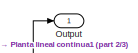
[diagram: root canvas - part 1/3, top right region]
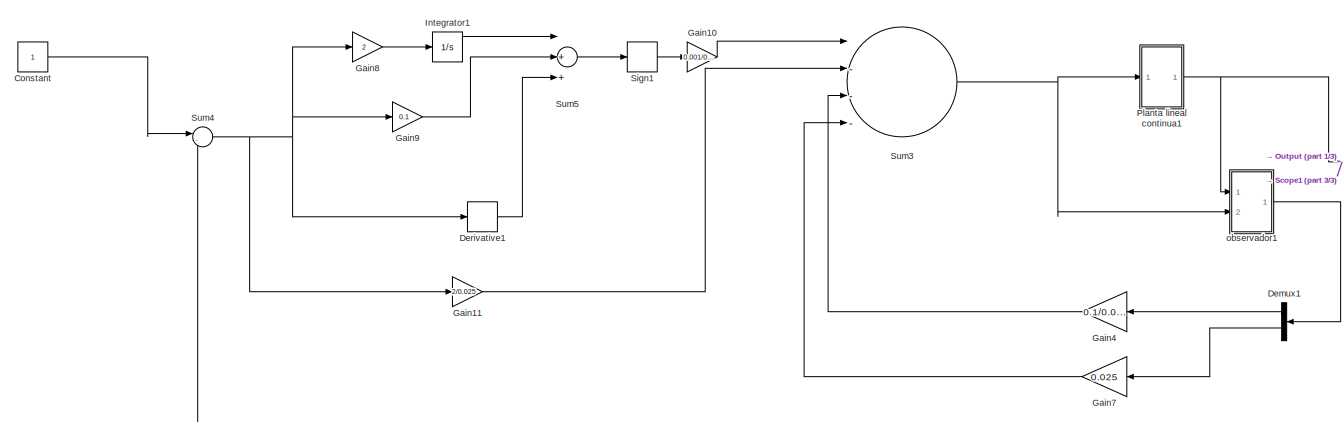
[diagram: root canvas - part 2/3, middle left region]
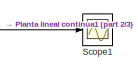
[diagram: root canvas - part 3/3, middle right region]
MODEL slx_2b1a9d527b09
KIND model
CONFIG AbsTol = auto
CONFIG EnableMultiTasking = off
CONFIG FixedStep = auto
CONFIG MaxStep = auto
CONFIG MinStep = auto
CONFIG RelTol = 1e-3
CONFIG SampleTimeConstraint = Unconstrained
CONFIG Solver = VariableStepAuto
CONFIG SolverName = VariableStepAuto
CONFIG StartTime = 0.0
CONFIG StopTime = 50
BLOCK [Constant] Constant
BLOCK [Demux] Demux1
  DisplayOption = bar
  Outputs = 2
  Ports = [1, 2]
BLOCK [Derivative] Derivative1
BLOCK [Gain] Gain10
  Gain = 0.001/0.025
  OutDataTypeStr = Inherit: Inherit via internal rule
  ParamDataTypeStr = Inherit: Inherit via internal rule
  SaturateOnIntegerOverflow = off
BLOCK [Gain] Gain11
  Gain = 2/0.025
  OutDataTypeStr = Inherit: Inherit via internal rule
  ParamDataTypeStr = Inherit: Inherit via internal rule
  SaturateOnIntegerOverflow = off
BLOCK [Gain] Gain4
  Gain = 0.1/0.025-0.25
  OutDataTypeStr = Inherit: Inherit via internal rule
  ParamDataTypeStr = Inherit: Inherit via internal rule
  SaturateOnIntegerOverflow = off
BLOCK [Gain] Gain7
  Gain = 0.025
  OutDataTypeStr = Inherit: Inherit via internal rule
  ParamDataTypeStr = Inherit: Inherit via internal rule
  SaturateOnIntegerOverflow = off
BLOCK [Gain] Gain8
  Gain = 2
  OutDataTypeStr = Inherit: Inherit via internal rule
  ParamDataTypeStr = Inherit: Inherit via internal rule
  SaturateOnIntegerOverflow = off
BLOCK [Gain] Gain9
  Gain = 0.1
  OutDataTypeStr = Inherit: Inherit via internal rule
  ParamDataTypeStr = Inherit: Inherit via internal rule
  SaturateOnIntegerOverflow = off
BLOCK [Integrator] Integrator1
  Ports = [1, 1]
BLOCK [Outport] Output
  IconDisplay = Port number
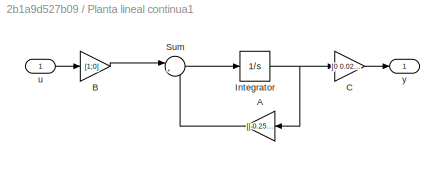
BLOCK [SubSystem] Planta lineal continua1
  Ports = [1, 1]
  RequestExecContextInheritance = off
BLOCK [Gain] Planta lineal continua1/A
  Gain = [[-0.25,-0.025];[1 0]]
  Multiplication = Matrix(K*u) (u vector)
  OutDataTypeStr = Inherit: Inherit via internal rule
  ParamDataTypeStr = Inherit: Inherit via internal rule
  SaturateOnIntegerOverflow = off
BLOCK [Gain] Planta lineal continua1/B
  Gain = [1;0]
  Multiplication = Matrix(K*u) (u vector)
  OutDataTypeStr = Inherit: Inherit via internal rule
  ParamDataTypeStr = Inherit: Inherit via internal rule
  SaturateOnIntegerOverflow = off
BLOCK [Gain] Planta lineal continua1/C
  Gain = [0 0.025]
  Multiplication = Matrix(K*u) (u vector)
  OutDataTypeStr = Inherit: Inherit via internal rule
  ParamDataTypeStr = Inherit: Inherit via internal rule
  SaturateOnIntegerOverflow = off
BLOCK [Integrator] Planta lineal continua1/Integrator
  Ports = [1, 1]
BLOCK [Sum] Planta lineal continua1/Sum
  IconShape = round
  InputSameDT = off
  Inputs = |++
  OutDataTypeStr = Inherit: Inherit via internal rule
  Ports = [2, 1]
  SaturateOnIntegerOverflow = off
BLOCK [Inport] Planta lineal continua1/u
  IconDisplay = Port number
BLOCK [Outport] Planta lineal continua1/y
  IconDisplay = Port number
BLOCK [Scope] Scope1
  Floating = off
  NumInputPorts = 1
  Ports = [1]
  ScopeSpecificationString = Simulink.scopes.TimeScopeBlockCfg('CurrentConfiguration', extmgr.ConfigurationSet(extmgr.Configuration('Core','General UI',true),extmgr.Configuration('Core','Source UI',true),extmgr.Configuration('Sources','WiredSimulink',true,'DataLoggingVariableName','ScopeData1'),extmgr.Configuration('Visuals','Time Domain',true,'SerializedDisplays',{struct('MinYLimReal','-0.12507','MaxYLimReal','1.12562','YLab...<+1762ch>
BLOCK [Signum] Sign1
  ZeroCross = off
BLOCK [Sum] Sum3
  InputSameDT = off
  Inputs = |---+
  OutDataTypeStr = Inherit: Inherit via internal rule
  Ports = [4, 1]
  SaturateOnIntegerOverflow = off
BLOCK [Sum] Sum4
  IconShape = round
  InputSameDT = off
  Inputs = |-+
  OutDataTypeStr = Inherit: Inherit via internal rule
  Ports = [2, 1]
  SaturateOnIntegerOverflow = off
BLOCK [Sum] Sum5
  InputSameDT = off
  Inputs = |+++
  OutDataTypeStr = Inherit: Inherit via internal rule
  Ports = [3, 1]
  SaturateOnIntegerOverflow = off
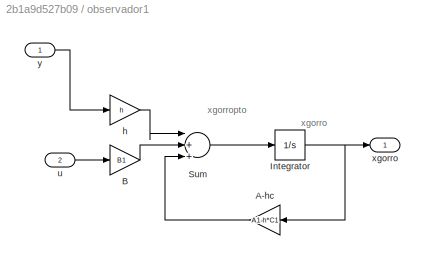
BLOCK [SubSystem] observador1
  Ports = [2, 1]
  RequestExecContextInheritance = off
BLOCK [Gain] observador1/A-hc
  Gain = A1-h*C1
  Multiplication = Matrix(K*u) (u vector)
  OutDataTypeStr = Inherit: Inherit via internal rule
  ParamDataTypeStr = Inherit: Inherit via internal rule
  SaturateOnIntegerOverflow = off
BLOCK [Gain] observador1/B
  Gain = B1
  Multiplication = Matrix(K*u) (u vector)
  OutDataTypeStr = Inherit: Inherit via internal rule
  ParamDataTypeStr = Inherit: Inherit via internal rule
  SaturateOnIntegerOverflow = off
BLOCK [Integrator] observador1/Integrator
  Ports = [1, 1]
BLOCK [Sum] observador1/Sum
  InputSameDT = off
  Inputs = |+++
  OutDataTypeStr = Inherit: Inherit via internal rule
  Ports = [3, 1]
  SaturateOnIntegerOverflow = off
BLOCK [Gain] observador1/h
  Gain = h
  Multiplication = Matrix(K*u) (u vector)
  OutDataTypeStr = Inherit: Inherit via internal rule
  ParamDataTypeStr = Inherit: Inherit via internal rule
  SaturateOnIntegerOverflow = off
BLOCK [Inport] observador1/u
  IconDisplay = Port number
  Port = 2
BLOCK [Outport] observador1/xgorro
  IconDisplay = Port number
BLOCK [Inport] observador1/y
  IconDisplay = Port number
ANNOTATION observador1: xgorro
ANNOTATION observador1: xgorropto
LINE Constant:1 -> Sum4:1
LINE Demux1:1 -> Gain4:1
LINE Demux1:2 -> Gain7:1
LINE Derivative1:1 -> Sum5:3
LINE Gain10:1 -> Sum3:1
LINE Gain11:1 -> Sum3:2
LINE Gain4:1 -> Sum3:3
LINE Gain7:1 -> Sum3:4
LINE Gain8:1 -> Integrator1:1
LINE Gain9:1 -> Sum5:2
LINE Integrator1:1 -> Sum5:1
LINE Planta lineal continua1/A:1 -> Planta lineal continua1/Sum:2
LINE Planta lineal continua1/B:1 -> Planta lineal continua1/Sum:1
LINE Planta lineal continua1/C:1 -> Planta lineal continua1/y:1
NET Planta lineal continua1/Integrator:1 -> Planta lineal continua1/A:1, Planta lineal continua1/C:1
LINE Planta lineal continua1/Sum:1 -> Planta lineal continua1/Integrator:1
LINE Planta lineal continua1/u:1 -> Planta lineal continua1/B:1
NET Planta lineal continua1:1 -> Output:1, Scope1:1, Sum4:2, observador1:1
LINE Sign1:1 -> Gain10:1
NET Sum3:1 -> Planta lineal continua1:1, observador1:2
NET Sum4:1 -> Derivative1:1, Gain11:1, Gain8:1, Gain9:1
LINE Sum5:1 -> Sign1:1
LINE observador1/A-hc:1 -> observador1/Sum:3
LINE observador1/B:1 -> observador1/Sum:2
NET observador1/Integrator:1 -> observador1/A-hc:1, observador1/xgorro:1
LINE observador1/Sum:1 -> observador1/Integrator:1
LINE observador1/h:1 -> observador1/Sum:1
LINE observador1/u:1 -> observador1/B:1
LINE observador1/y:1 -> observador1/h:1
LINE observador1:1 -> Demux1:1
note: NET lines group one-source signal fan-out (src -> all destinations, sorted); 1:1 wires keep LINE
